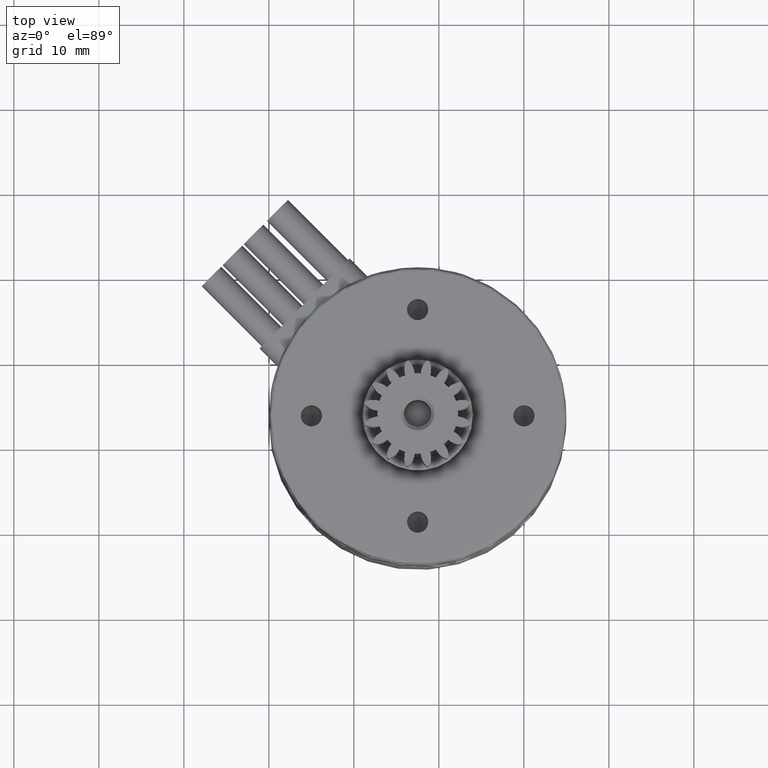
[diagram: clean part render]
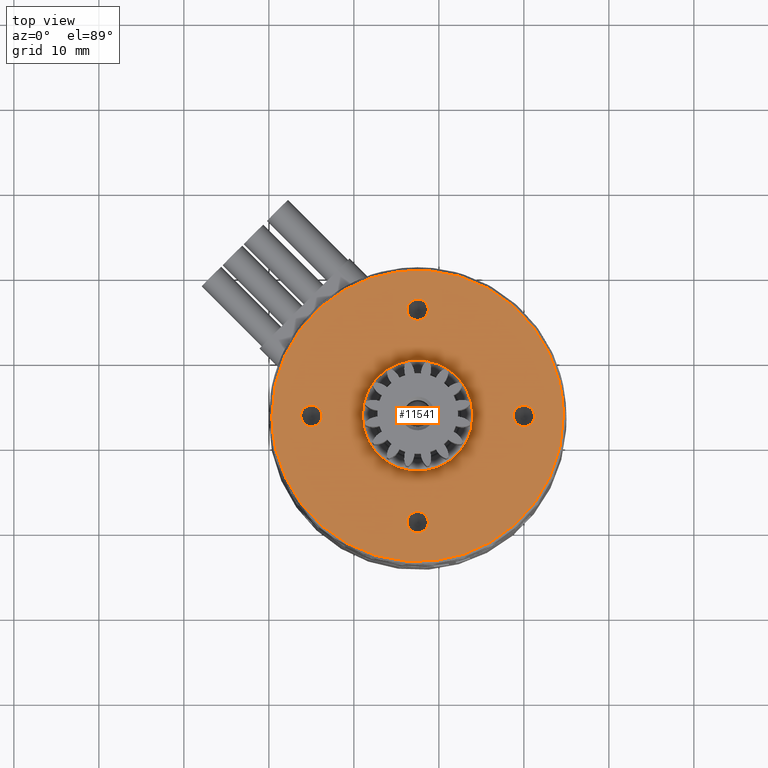
[diagram: same view with one face highlighted and labeled with its STEP entity id]
A machine part, top view. The second image highlights one B-rep face of the part: STEP entity #11541.
In plain terms, the highlighted planar face has unit normal (0, -0, 1).
Its self-contained STEP definition (entity closure, byte-faithful):
#121 = FACE_BOUND ( 'NONE', #16834, .T. ) ;
#184 = CARTESIAN_POINT ( 'NONE',  ( 4.999999999999997335, 4.499999999999990230, 1.540743955509787861E-32 ) ) ;
#882 = EDGE_LOOP ( 'NONE', ( #6961 ) ) ;
#940 = AXIS2_PLACEMENT_3D ( 'NONE', #6013, #12711, #19326 ) ;
#1366 = DIRECTION ( 'NONE',  ( -4.002082424436676103E-31, 8.326672684688676518E-17, -1.000000000000000000 ) ) ;
#1401 = VERTEX_POINT ( 'NONE', #8013 ) ;
#1657 = ORIENTED_EDGE ( 'NONE', *, *, #10686, .F. ) ;
#1748 = FACE_BOUND ( 'NONE', #10797, .T. ) ;
#1944 = DIRECTION ( 'NONE',  ( 1.433442144322500688E-32, -8.326672684688676518E-17, 1.000000000000000000 ) ) ;
#2047 = CARTESIAN_POINT ( 'NONE',  ( 4.999999999999997335, 3.249999999999991118, 0.0000000000000000000 ) ) ;
#2089 = CARTESIAN_POINT ( 'NONE',  ( 34.64644660940671628, 37.54289321881343255, 2.638616537943293780E-15 ) ) ;
#3005 = CARTESIAN_POINT ( 'NONE',  ( 11.00000000000000533, 3.249999999999992450, 3.469446951953614189E-15 ) ) ;
#3018 = EDGE_CURVE ( 'NONE', #7591, #20472, #7024, .T. ) ;
#3033 = EDGE_CURVE ( 'NONE', #17924, #17924, #15869, .T. ) ;
#3226 = CARTESIAN_POINT ( 'NONE',  ( 0.3535533905932725096, 3.249999999999992006, 0.0000000000000000000 ) ) ;
#3231 = CARTESIAN_POINT ( 'NONE',  ( 17.49999999999999645, 16.99999999999999289, 1.540743955509787861E-32 ) ) ;
#3380 = DIRECTION ( 'NONE',  ( -4.002082424436676103E-31, 8.326672684688676518E-17, -1.000000000000000000 ) ) ;
#4376 = CARTESIAN_POINT ( 'NONE',  ( 34.64644660940673049, 3.249999999999997780, 0.0000000000000000000 ) ) ;
#4390 = EDGE_CURVE ( 'NONE', #1401, #1401, #16838, .T. ) ;
#4961 = CARTESIAN_POINT ( 'NONE',  ( 17.49999999999999645, 3.249999999999993783, 3.469446951953614189E-15 ) ) ;
#6013 = CARTESIAN_POINT ( 'NONE',  ( 17.49999999999999645, 15.74999999999999645, 0.0000000000000000000 ) ) ;
#6160 = CARTESIAN_POINT ( 'NONE',  ( 0.3535533905932725096, 3.249999999999992006, 0.0000000000000000000 ) ) ;
#6194 =( BOUNDED_CURVE ( )  B_SPLINE_CURVE ( 3, ( #10389, #17020, #2089, #8746 ),
 .UNSPECIFIED., .F., .F. ) 
 B_SPLINE_CURVE_WITH_KNOTS ( ( 4, 4 ),
 ( 0.0000000000000000000, 1.000000000000000000 ),
 .UNSPECIFIED. ) 
 CURVE ( )  GEOMETRIC_REPRESENTATION_ITEM ( )  RATIONAL_B_SPLINE_CURVE ( ( 1.000000000000000000, 0.3333333333333333703, 0.3333333333333333703, 1.000000000000000000 ) ) 
 REPRESENTATION_ITEM ( '' )  );
#6726 = FACE_BOUND ( 'NONE', #882, .T. ) ;
#6961 = ORIENTED_EDGE ( 'NONE', *, *, #11625, .T. ) ;
#7009 = VERTEX_POINT ( 'NONE', #13690 ) ;
#7024 =( BOUNDED_CURVE ( )  B_SPLINE_CURVE ( 3, ( #7793, #14473, #21077, #6160 ),
 .UNSPECIFIED., .F., .F. ) 
 B_SPLINE_CURVE_WITH_KNOTS ( ( 4, 4 ),
 ( 0.0000000000000000000, 1.000000000000000000 ),
 .UNSPECIFIED. ) 
 CURVE ( )  GEOMETRIC_REPRESENTATION_ITEM ( )  RATIONAL_B_SPLINE_CURVE ( ( 1.000000000000000000, 0.3333333333333333703, 0.3333333333333333703, 1.000000000000000000 ) ) 
 REPRESENTATION_ITEM ( '' )  );
#7471 = EDGE_LOOP ( 'NONE', ( #1657, #11709 ) ) ;
#7588 = EDGE_CURVE ( 'NONE', #18143, #18143, #9278, .T. ) ;
#7591 = VERTEX_POINT ( 'NONE', #4376 ) ;
#7793 = CARTESIAN_POINT ( 'NONE',  ( 34.64644660940673049, 3.249999999999997780, 0.0000000000000000000 ) ) ;
#7975 = DIRECTION ( 'NONE',  ( 0.0000000000000000000, 1.000000000000000000, 1.232595164407830946E-32 ) ) ;
#8013 = CARTESIAN_POINT ( 'NONE',  ( 17.50000000000000000, -8.000000000000007105, 1.540743955509787861E-32 ) ) ;
#8377 = FACE_BOUND ( 'NONE', #20493, .T. ) ;
#8593 = DIRECTION ( 'NONE',  ( 1.000000000000000000, 2.289834988289385365E-16, 4.732285006208633540E-33 ) ) ;
#8693 = DIRECTION ( 'NONE',  ( -4.002082424436676103E-31, 8.326672684688676518E-17, -1.000000000000000000 ) ) ;
#8746 = CARTESIAN_POINT ( 'NONE',  ( 34.64644660940673049, 3.249999999999997780, 0.0000000000000000000 ) ) ;
#9278 = CIRCLE ( 'NONE', #940, 1.249999999999997558 ) ;
#9905 = AXIS2_PLACEMENT_3D ( 'NONE', #16262, #1366, #7975 ) ;
#10030 = DIRECTION ( 'NONE',  ( 0.0000000000000000000, 1.000000000000000000, 1.232595164407830946E-32 ) ) ;
#10147 = ORIENTED_EDGE ( 'NONE', *, *, #7588, .T. ) ;
#10389 = CARTESIAN_POINT ( 'NONE',  ( 0.3535533905932725096, 3.249999999999992006, 0.0000000000000000000 ) ) ;
#10489 = AXIS2_PLACEMENT_3D ( 'NONE', #2047, #8693, #15341 ) ;
#10686 = EDGE_CURVE ( 'NONE', #20472, #7591, #6194, .T. ) ;
#10797 = EDGE_LOOP ( 'NONE', ( #11513 ) ) ;
#11513 = ORIENTED_EDGE ( 'NONE', *, *, #3033, .T. ) ;
#11541 = ADVANCED_FACE ( 'NONE', ( #1748, #8377, #15033, #121, #6726, #13412 ), #20017, .T. ) ;
#11625 = EDGE_CURVE ( 'NONE', #15099, #15099, #12251, .T. ) ;
#11641 = DIRECTION ( 'NONE',  ( -4.139648849035764628E-31, 8.326672684688676518E-17, -1.000000000000000000 ) ) ;
#11709 = ORIENTED_EDGE ( 'NONE', *, *, #3018, .F. ) ;
#12251 = CIRCLE ( 'NONE', #10489, 1.249999999999998890 ) ;
#12307 = ORIENTED_EDGE ( 'NONE', *, *, #17321, .T. ) ;
#12711 = DIRECTION ( 'NONE',  ( -4.002082424436676103E-31, 8.326672684688676518E-17, -1.000000000000000000 ) ) ;
#13412 = FACE_OUTER_BOUND ( 'NONE', #7471, .T. ) ;
#13443 = CIRCLE ( 'NONE', #14478, 1.249999999999999334 ) ;
#13690 = CARTESIAN_POINT ( 'NONE',  ( 30.00000000000000000, 4.499999999999996447, 1.540743955509787861E-32 ) ) ;
#14473 = CARTESIAN_POINT ( 'NONE',  ( 34.64644660940673049, -31.04289321881345032, -3.072297406937495554E-15 ) ) ;
#14478 = AXIS2_PLACEMENT_3D ( 'NONE', #18288, #3380, #10030 ) ;
#15033 = FACE_BOUND ( 'NONE', #21054, .T. ) ;
#15099 = VERTEX_POINT ( 'NONE', #184 ) ;
#15341 = DIRECTION ( 'NONE',  ( 0.0000000000000000000, 1.000000000000000000, 1.232595164407831493E-32 ) ) ;
#15869 = CIRCLE ( 'NONE', #20037, 6.499999999999993783 ) ;
#16262 = CARTESIAN_POINT ( 'NONE',  ( 17.50000000000000000, -9.250000000000007105, 0.0000000000000000000 ) ) ;
#16834 = EDGE_LOOP ( 'NONE', ( #21004 ) ) ;
#16838 = CIRCLE ( 'NONE', #9905, 1.249999999999999334 ) ;
#16856 = CARTESIAN_POINT ( 'NONE',  ( 11.00000000000000533, 3.249999999999992450, 0.0000000000000000000 ) ) ;
#17020 = CARTESIAN_POINT ( 'NONE',  ( 0.3535533905932689014, 37.54289321881343255, 2.638616537943293780E-15 ) ) ;
#17321 = EDGE_CURVE ( 'NONE', #7009, #7009, #13443, .T. ) ;
#17924 = VERTEX_POINT ( 'NONE', #3005 ) ;
#18143 = VERTEX_POINT ( 'NONE', #3231 ) ;
#18244 = DIRECTION ( 'NONE',  ( -1.000000000000000000, -2.001604010742471734E-16, 0.0000000000000000000 ) ) ;
#18288 = CARTESIAN_POINT ( 'NONE',  ( 30.00000000000000000, 3.249999999999996891, 0.0000000000000000000 ) ) ;
#19326 = DIRECTION ( 'NONE',  ( 0.0000000000000000000, 1.000000000000000000, 1.232595164407832588E-32 ) ) ;
#19539 = AXIS2_PLACEMENT_3D ( 'NONE', #16856, #1944, #8593 ) ;
#20017 = PLANE ( 'NONE',  #19539 ) ;
#20037 = AXIS2_PLACEMENT_3D ( 'NONE', #4961, #11641, #18244 ) ;
#20472 = VERTEX_POINT ( 'NONE', #3226 ) ;
#20493 = EDGE_LOOP ( 'NONE', ( #10147 ) ) ;
#21004 = ORIENTED_EDGE ( 'NONE', *, *, #4390, .T. ) ;
#21054 = EDGE_LOOP ( 'NONE', ( #12307 ) ) ;
#21077 = CARTESIAN_POINT ( 'NONE',  ( 0.3535533905932761178, -31.04289321881345032, -3.072297406937495554E-15 ) ) ;